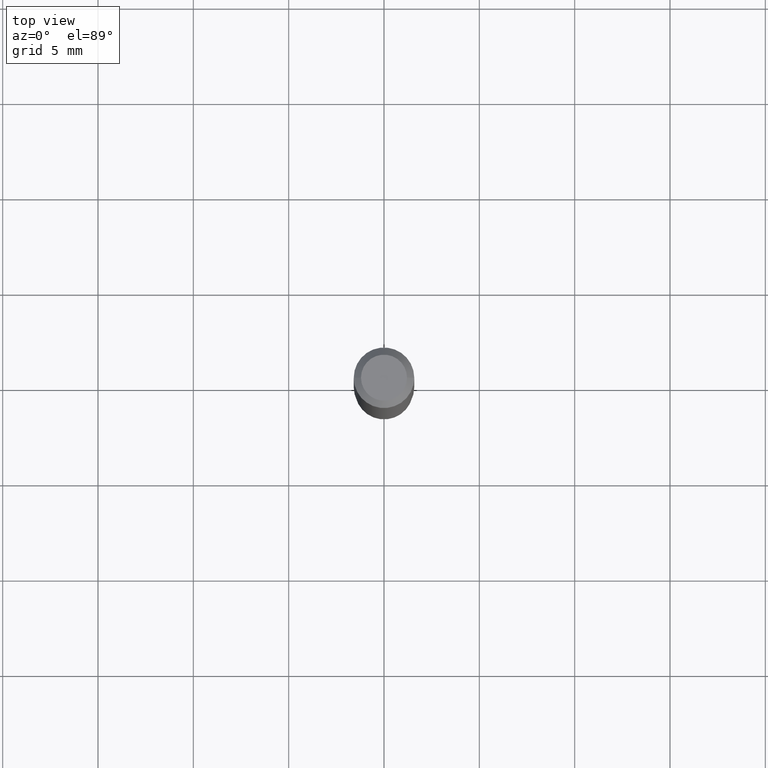
[diagram: clean part render]
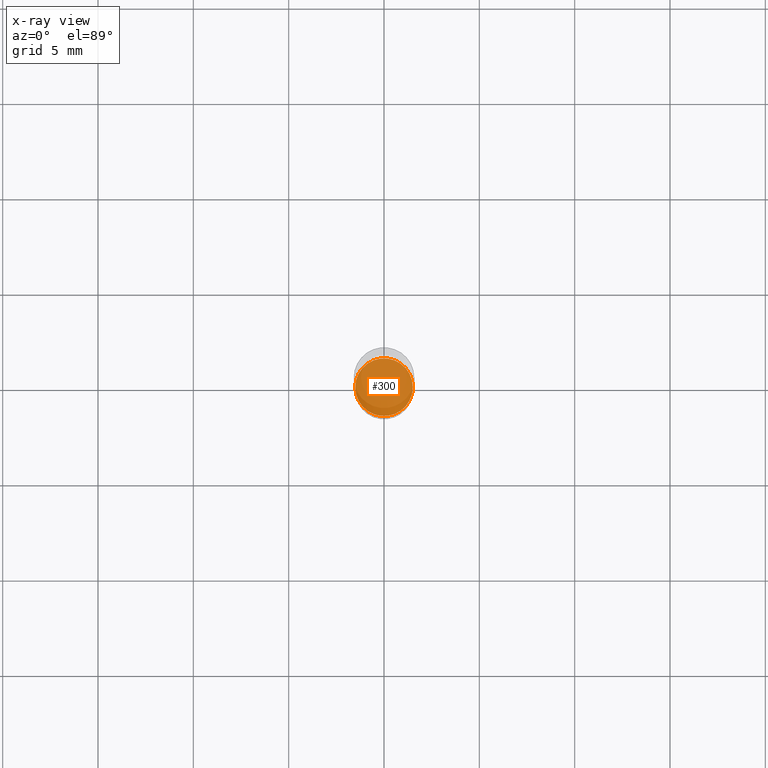
[diagram: x-ray — body ghosted, one internal face saturated and labeled with its STEP entity id]
A machine part, top view, then the same camera in x-ray: the body is ghosted and one INTERNAL B-rep face — a face not visible from any outside direction — is saturated and labeled: STEP entity #300.
In plain terms, the highlighted planar face has unit normal (-0, 0, 1).
Its self-contained STEP definition (entity closure, byte-faithful):
#8 = PLANE ( 'NONE',  #301 ) ;
#28 = EDGE_CURVE ( 'NONE', #401, #166, #288, .T. ) ;
#32 = DIRECTION ( 'NONE',  ( -2.445468806185136597E-29, 3.491481338843145583E-15, 1.000000000000000000 ) ) ;
#56 = AXIS2_PLACEMENT_3D ( 'NONE', #124, #409, #376 ) ;
#92 = AXIS2_PLACEMENT_3D ( 'NONE', #385, #32, #420 ) ;
#93 = CIRCLE ( 'NONE', #56, 0.05949999999999999734 ) ;
#124 = CARTESIAN_POINT ( 'NONE',  ( 2.787834439051055989E-29, -3.980288726281186698E-15, -1.140000000000000124 ) ) ;
#129 = ORIENTED_EDGE ( 'NONE', *, *, #28, .F. ) ;
#166 = VERTEX_POINT ( 'NONE', #252 ) ;
#191 = FACE_OUTER_BOUND ( 'NONE', #357, .T. ) ;
#196 = CARTESIAN_POINT ( 'NONE',  ( 2.787834439051055989E-29, -3.980288726281186698E-15, -1.140000000000000124 ) ) ;
#227 = DIRECTION ( 'NONE',  ( 1.000000000000000000, -6.982962677686265922E-15, 4.876176775795935793E-29 ) ) ;
#252 = CARTESIAN_POINT ( 'NONE',  ( -0.05949999999999999734, -3.554866571329815905E-15, -1.140000000000000124 ) ) ;
#255 = EDGE_CURVE ( 'NONE', #166, #401, #93, .T. ) ;
#288 = CIRCLE ( 'NONE', #92, 0.05949999999999999734 ) ;
#294 = CARTESIAN_POINT ( 'NONE',  ( 0.05949999999999999734, -4.395775005603518747E-15, -1.140000000000000124 ) ) ;
#300 = ADVANCED_FACE ( 'NONE', ( #191 ), #8, .F. ) ;
#301 = AXIS2_PLACEMENT_3D ( 'NONE', #196, #434, #227 ) ;
#357 = EDGE_LOOP ( 'NONE', ( #129, #432 ) ) ;
#376 = DIRECTION ( 'NONE',  ( 1.000000000000000000, -6.982962677686259611E-15, 0.000000000000000000 ) ) ;
#385 = CARTESIAN_POINT ( 'NONE',  ( 2.787834439051055989E-29, -3.980288726281186698E-15, -1.140000000000000124 ) ) ;
#401 = VERTEX_POINT ( 'NONE', #294 ) ;
#409 = DIRECTION ( 'NONE',  ( -2.445468806185136597E-29, 3.491481338843145583E-15, 1.000000000000000000 ) ) ;
#420 = DIRECTION ( 'NONE',  ( 1.000000000000000000, -6.982962677686259611E-15, 0.000000000000000000 ) ) ;
#432 = ORIENTED_EDGE ( 'NONE', *, *, #255, .F. ) ;
#434 = DIRECTION ( 'NONE',  ( -2.438088387897960049E-29, 3.491481338843145188E-15, 1.000000000000000000 ) ) ;